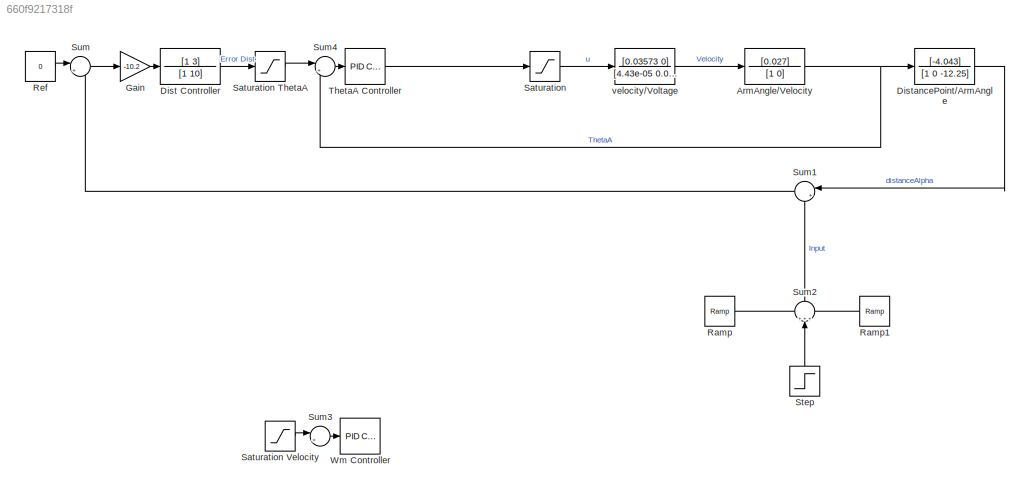
MODEL slx_660f9217318f
KIND model
CONFIG AbsTol = auto
CONFIG EnableMultiTasking = off
CONFIG FixedStep = auto
CONFIG MaxStep = auto
CONFIG MinStep = auto
CONFIG RelTol = 1e-3
CONFIG SampleTimeConstraint = Unconstrained
CONFIG Solver = VariableStepAuto
CONFIG SolverName = VariableStepAuto
CONFIG StartTime = 0.0
CONFIG StopTime = 60
BLOCK [TransferFcn] ArmAngle//Velocity
  Denominator = [1 0]
  Numerator = [0.027]
BLOCK [TransferFcn] Dist Controller
  Denominator = [1 10]
  Numerator = [1 3]
BLOCK [TransferFcn] DistancePoint//ArmAngle
  Denominator = [1 0 -12.25]
  Numerator = [-4.043]
BLOCK [Gain] Gain
  Gain = -10.2
  OutDataTypeStr = Inherit: Inherit via internal rule
  ParamDataTypeStr = Inherit: Inherit via internal rule
  SaturateOnIntegerOverflow = off
BLOCK [Reference] Ramp  REF=simulink/Sources/Ramp
  Ports = [0, 1]
  SourceBlock = simulink/Sources/Ramp
  SourceProductBaseCode = SL
  SourceProductName = Simulink
  SourceType = Ramp
BLOCK [Reference] Ramp1  REF=simulink/Sources/Ramp
  Ports = [0, 1]
  SourceBlock = simulink/Sources/Ramp
  SourceProductBaseCode = SL
  SourceProductName = Simulink
  SourceType = Ramp
BLOCK [Constant] Ref
  Value = 0
BLOCK [Saturate] Saturation
  InputPortMap = u0
  LowerLimit = -15.6
  Ports = [1, 1]
  UpperLimit = 15.6
BLOCK [Saturate] Saturation ThetaA
  InputPortMap = u0
  LowerLimit = -0.7
  Ports = [1, 1]
  UpperLimit = 0.7
BLOCK [Saturate] Saturation Velocity
  InputPortMap = u0
  LowerLimit = -3000*pi/30
  Ports = [1, 1]
  UpperLimit = 3000*pi/30
BLOCK [Step] Step
  After = -0.1*sin(500*pi/180)*0.8
  SampleTime = 0
  Time = 0.1
BLOCK [Sum] Sum
  IconShape = round
  InputSameDT = off
  Inputs = |+-
  OutDataTypeStr = Inherit: Inherit via internal rule
  Ports = [2, 1]
  SaturateOnIntegerOverflow = off
BLOCK [Sum] Sum1
  IconShape = round
  InputSameDT = off
  Inputs = |++
  OutDataTypeStr = Inherit: Inherit via internal rule
  Ports = [2, 1]
  SaturateOnIntegerOverflow = off
BLOCK [Sum] Sum2
  IconShape = round
  InputSameDT = off
  Inputs = +++
  OutDataTypeStr = Inherit: Inherit via internal rule
  Ports = [3, 1]
  SaturateOnIntegerOverflow = off
BLOCK [Sum] Sum3
  IconShape = round
  InputSameDT = off
  Inputs = |+-
  OutDataTypeStr = Inherit: Inherit via internal rule
  Ports = [2, 1]
  SaturateOnIntegerOverflow = off
BLOCK [Sum] Sum4
  IconShape = round
  InputSameDT = off
  Inputs = |+-
  OutDataTypeStr = Inherit: Inherit via internal rule
  Ports = [2, 1]
  SaturateOnIntegerOverflow = off
BLOCK [Reference] ThetaA Controller  REF=simulink/Continuous/PID Controller
  Ports = [1, 1]
  SourceBlock = simulink/Continuous/PID Controller
  SourceProductBaseCode = SL
  SourceProductName = Simulink
  SourceType = PID 1dof
BLOCK [Reference] Wm Controller  REF=simulink/Continuous/PID Controller
  Ports = [1, 1]
  SourceBlock = simulink/Continuous/PID Controller
  SourceProductBaseCode = SL
  SourceProductName = Simulink
  SourceType = PID 1dof
BLOCK [TransferFcn] velocity//Voltage
  Denominator = [4.43e-05 0.002537 0]
  Numerator = [0.03573 0]
NET ArmAngle//Velocity:1 -> DistancePoint//ArmAngle:1, Sum4:2
LINE Dist Controller:1 -> Saturation ThetaA:1
LINE DistancePoint//ArmAngle:1 -> Sum1:1
LINE Gain:1 -> Dist Controller:1
LINE Ramp1:1 -> Sum2:3
LINE Ramp:1 -> Sum2:1
LINE Ref:1 -> Sum:1
LINE Saturation ThetaA:1 -> Sum4:1
LINE Saturation Velocity:1 -> Sum3:1
LINE Saturation:1 -> velocity//Voltage:1
LINE Step:1 -> Sum2:2
LINE Sum1:1 -> Sum:2
LINE Sum2:1 -> Sum1:2
LINE Sum3:1 -> Wm Controller:1
LINE Sum4:1 -> ThetaA Controller:1
LINE Sum:1 -> Gain:1
LINE ThetaA Controller:1 -> Saturation:1
LINE velocity//Voltage:1 -> ArmAngle//Velocity:1
note: NET lines group one-source signal fan-out (src -> all destinations, sorted); 1:1 wires keep LINE
